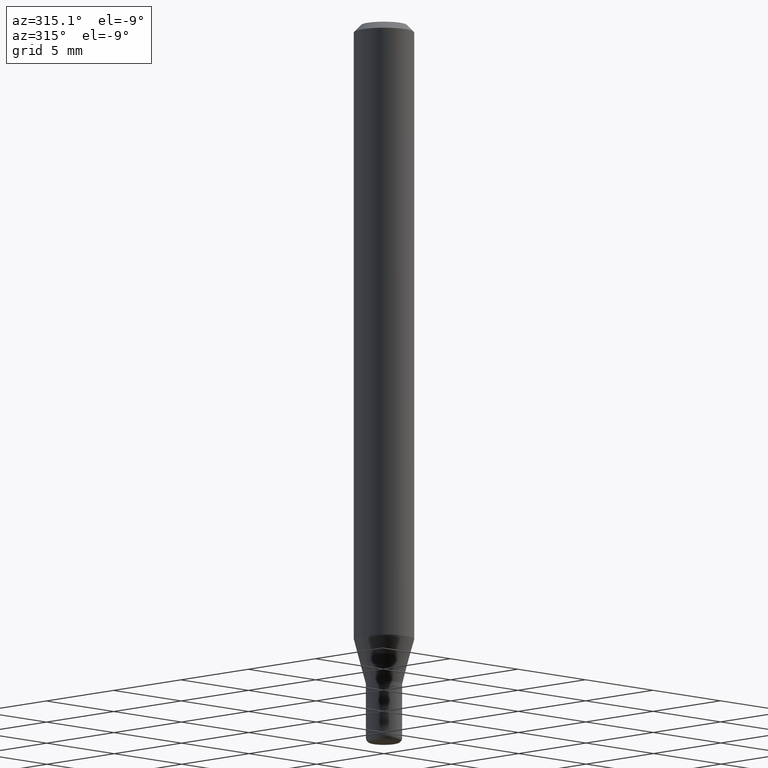
[diagram: clean part render]
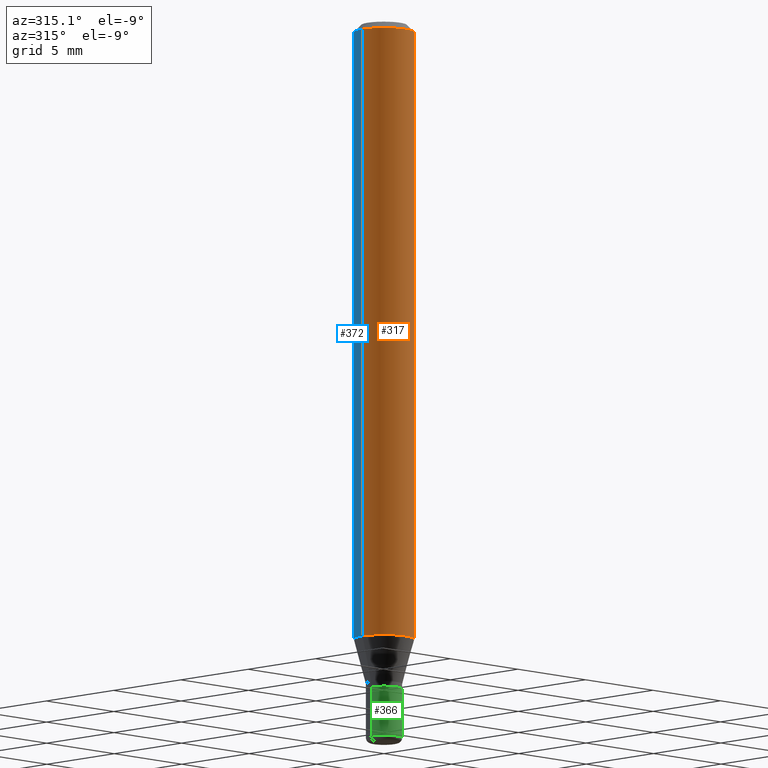
[diagram: same view with three faces highlighted in distinct colors, each labeled with its STEP entity id]
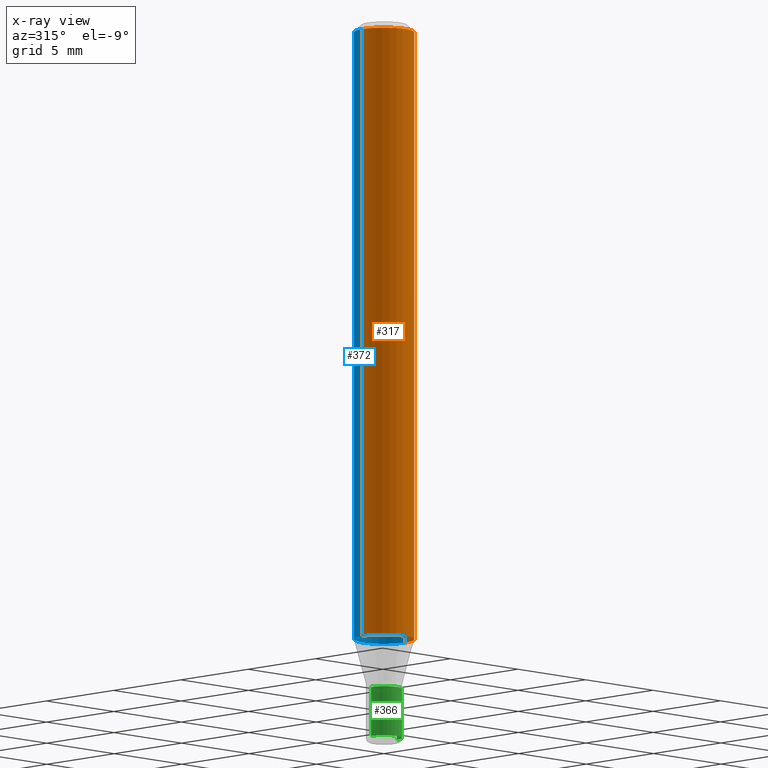
[diagram: x-ray of the same camera — body ghosted, the three highlighted faces saturated]
A machine part, auxiliary view with three faces highlighted in distinct colors.
The next image is the same camera in x-ray (body ghosted, the three faces saturated) — at least one of them is partly hidden behind the body in this view.
Their STEP definitions:

[orange] entity #317 — the highlighted cylindrical surface (edge-blend (fillet) strip) has radius 1.5875 mm, axis along (-0, 0, 1).
#32 = CARTESIAN_POINT ( 'NONE',  ( 0.000000000000000000, 0.000000000000000000, 0.000000000000000000 ) ) ;
#47 = EDGE_CURVE ( 'NONE', #388, #312, #76, .T. ) ;
#73 = VERTEX_POINT ( 'NONE', #167 ) ;
#76 = LINE ( 'NONE', #478, #501 ) ;
#94 = CARTESIAN_POINT ( 'NONE',  ( -0.06250000000000000000, -1.823101980106750651E-15, -0.01499999999999970281 ) ) ;
#99 = AXIS2_PLACEMENT_3D ( 'NONE', #263, #374, #137 ) ;
#109 = FACE_OUTER_BOUND ( 'NONE', #202, .T. ) ;
#120 = DIRECTION ( 'NONE',  ( -2.445468806185136877E-29, 3.491481338843145188E-15, 1.000000000000000000 ) ) ;
#132 = EDGE_CURVE ( 'NONE', #73, #388, #468, .T. ) ;
#134 = AXIS2_PLACEMENT_3D ( 'NONE', #348, #260, #266 ) ;
#137 = DIRECTION ( 'NONE',  ( 1.000000000000000000, -6.982962677686266711E-15, 0.000000000000000000 ) ) ;
#167 = CARTESIAN_POINT ( 'NONE',  ( -0.06250000000000000000, -4.037920949980918021E-15, -1.283698729810778039 ) ) ;
#174 = VERTEX_POINT ( 'NONE', #94 ) ;
#181 = EDGE_CURVE ( 'NONE', #73, #174, #413, .T. ) ;
#195 = CIRCLE ( 'NONE', #99, 0.06250000000000000000 ) ;
#202 = EDGE_LOOP ( 'NONE', ( #291, #353, #463, #487 ) ) ;
#207 = VECTOR ( 'NONE', #308, 39.37007874015748143 ) ;
#219 = CYLINDRICAL_SURFACE ( 'NONE', #327, 0.06250000000000000000 ) ;
#225 = EDGE_CURVE ( 'NONE', #174, #312, #195, .T. ) ;
#259 = CARTESIAN_POINT ( 'NONE',  ( 0.06250000000000000000, -4.918445327186372307E-15, -1.283698729810778039 ) ) ;
#260 = DIRECTION ( 'NONE',  ( -2.445468806185136597E-29, 3.491481338843145583E-15, 1.000000000000000000 ) ) ;
#263 = CARTESIAN_POINT ( 'NONE',  ( 3.668203209277632395E-31, -5.237222008264614861E-17, -0.01499999999999970281 ) ) ;
#266 = DIRECTION ( 'NONE',  ( 1.000000000000000000, -6.982962677686262766E-15, 0.000000000000000000 ) ) ;
#291 = ORIENTED_EDGE ( 'NONE', *, *, #181, .F. ) ;
#304 = DIRECTION ( 'NONE',  ( 1.000000000000000000, -6.982962677686266711E-15, 4.876176775795935793E-29 ) ) ;
#307 = CARTESIAN_POINT ( 'NONE',  ( 0.06250000000000000000, -4.888073874380378612E-16, -0.01499999999999970281 ) ) ;
#308 = DIRECTION ( 'NONE',  ( -2.445468806185136877E-29, 3.491481338843145188E-15, 1.000000000000000000 ) ) ;
#312 = VERTEX_POINT ( 'NONE', #307 ) ;
#317 = ADVANCED_FACE ( 'NONE', ( #109 ), #219, .T. ) ;
#327 = AXIS2_PLACEMENT_3D ( 'NONE', #32, #425, #304 ) ;
#344 = CARTESIAN_POINT ( 'NONE',  ( -0.06250000000000000000, 4.440892098500626162E-16, -3.074334431409316114E-30 ) ) ;
#348 = CARTESIAN_POINT ( 'NONE',  ( 3.139245200291739433E-29, -4.482010159830980638E-15, -1.283698729810778039 ) ) ;
#353 = ORIENTED_EDGE ( 'NONE', *, *, #132, .T. ) ;
#374 = DIRECTION ( 'NONE',  ( -2.445468806185136597E-29, 3.491481338843145583E-15, 1.000000000000000000 ) ) ;
#388 = VERTEX_POINT ( 'NONE', #259 ) ;
#413 = LINE ( 'NONE', #344, #207 ) ;
#425 = DIRECTION ( 'NONE',  ( -2.445468806185136597E-29, 3.491481338843145583E-15, 1.000000000000000000 ) ) ;
#463 = ORIENTED_EDGE ( 'NONE', *, *, #47, .T. ) ;
#468 = CIRCLE ( 'NONE', #134, 0.06250000000000000000 ) ;
#478 = CARTESIAN_POINT ( 'NONE',  ( 0.06250000000000000000, -4.364351673553916694E-16, 3.047610484872459871E-30 ) ) ;
#487 = ORIENTED_EDGE ( 'NONE', *, *, #225, .F. ) ;
#501 = VECTOR ( 'NONE', #120, 39.37007874015748143 ) ;

[blue] entity #372 — the highlighted cylindrical surface (edge-blend (fillet) strip) has radius 1.5875 mm, axis along (-0, 0, 1).
#17 = DIRECTION ( 'NONE',  ( 1.000000000000000000, -6.982962677686266711E-15, 0.000000000000000000 ) ) ;
#30 = DIRECTION ( 'NONE',  ( -2.445468806185136597E-29, 3.491481338843145583E-15, 1.000000000000000000 ) ) ;
#47 = EDGE_CURVE ( 'NONE', #388, #312, #76, .T. ) ;
#64 = ORIENTED_EDGE ( 'NONE', *, *, #83, .F. ) ;
#73 = VERTEX_POINT ( 'NONE', #167 ) ;
#76 = LINE ( 'NONE', #478, #501 ) ;
#83 = EDGE_CURVE ( 'NONE', #312, #174, #396, .T. ) ;
#90 = AXIS2_PLACEMENT_3D ( 'NONE', #505, #377, #179 ) ;
#94 = CARTESIAN_POINT ( 'NONE',  ( -0.06250000000000000000, -1.823101980106750651E-15, -0.01499999999999970281 ) ) ;
#120 = DIRECTION ( 'NONE',  ( -2.445468806185136877E-29, 3.491481338843145188E-15, 1.000000000000000000 ) ) ;
#141 = AXIS2_PLACEMENT_3D ( 'NONE', #345, #30, #343 ) ;
#161 = AXIS2_PLACEMENT_3D ( 'NONE', #456, #254, #17 ) ;
#167 = CARTESIAN_POINT ( 'NONE',  ( -0.06250000000000000000, -4.037920949980918021E-15, -1.283698729810778039 ) ) ;
#174 = VERTEX_POINT ( 'NONE', #94 ) ;
#179 = DIRECTION ( 'NONE',  ( 1.000000000000000000, -6.982962677686266711E-15, 4.876176775795935793E-29 ) ) ;
#181 = EDGE_CURVE ( 'NONE', #73, #174, #413, .T. ) ;
#207 = VECTOR ( 'NONE', #308, 39.37007874015748143 ) ;
#220 = EDGE_LOOP ( 'NONE', ( #240, #418, #64, #406 ) ) ;
#227 = CYLINDRICAL_SURFACE ( 'NONE', #90, 0.06250000000000000000 ) ;
#240 = ORIENTED_EDGE ( 'NONE', *, *, #325, .T. ) ;
#254 = DIRECTION ( 'NONE',  ( -2.445468806185136597E-29, 3.491481338843145583E-15, 1.000000000000000000 ) ) ;
#259 = CARTESIAN_POINT ( 'NONE',  ( 0.06250000000000000000, -4.918445327186372307E-15, -1.283698729810778039 ) ) ;
#307 = CARTESIAN_POINT ( 'NONE',  ( 0.06250000000000000000, -4.888073874380378612E-16, -0.01499999999999970281 ) ) ;
#308 = DIRECTION ( 'NONE',  ( -2.445468806185136877E-29, 3.491481338843145188E-15, 1.000000000000000000 ) ) ;
#312 = VERTEX_POINT ( 'NONE', #307 ) ;
#325 = EDGE_CURVE ( 'NONE', #388, #73, #417, .T. ) ;
#343 = DIRECTION ( 'NONE',  ( 1.000000000000000000, -6.982962677686262766E-15, 0.000000000000000000 ) ) ;
#344 = CARTESIAN_POINT ( 'NONE',  ( -0.06250000000000000000, 4.440892098500626162E-16, -3.074334431409316114E-30 ) ) ;
#345 = CARTESIAN_POINT ( 'NONE',  ( 3.139245200291739433E-29, -4.482010159830980638E-15, -1.283698729810778039 ) ) ;
#349 = FACE_OUTER_BOUND ( 'NONE', #220, .T. ) ;
#372 = ADVANCED_FACE ( 'NONE', ( #349 ), #227, .T. ) ;
#377 = DIRECTION ( 'NONE',  ( -2.445468806185136597E-29, 3.491481338843145583E-15, 1.000000000000000000 ) ) ;
#388 = VERTEX_POINT ( 'NONE', #259 ) ;
#396 = CIRCLE ( 'NONE', #161, 0.06250000000000000000 ) ;
#406 = ORIENTED_EDGE ( 'NONE', *, *, #47, .F. ) ;
#413 = LINE ( 'NONE', #344, #207 ) ;
#417 = CIRCLE ( 'NONE', #141, 0.06250000000000000000 ) ;
#418 = ORIENTED_EDGE ( 'NONE', *, *, #181, .T. ) ;
#456 = CARTESIAN_POINT ( 'NONE',  ( 3.668203209277632395E-31, -5.237222008264614861E-17, -0.01499999999999970281 ) ) ;
#478 = CARTESIAN_POINT ( 'NONE',  ( 0.06250000000000000000, -4.364351673553916694E-16, 3.047610484872459871E-30 ) ) ;
#501 = VECTOR ( 'NONE', #120, 39.37007874015748143 ) ;
#505 = CARTESIAN_POINT ( 'NONE',  ( 0.000000000000000000, 0.000000000000000000, 0.000000000000000000 ) ) ;

[green] entity #366 — the highlighted cylindrical surface (edge-blend (fillet) strip) has radius 0.9525 mm, axis along (-0, 0, 1).
#6 = CARTESIAN_POINT ( 'NONE',  ( 3.393087968581877252E-29, -4.844430357644865674E-15, -1.387500000000000178 ) ) ;
#48 = LINE ( 'NONE', #494, #379 ) ;
#52 = VERTEX_POINT ( 'NONE', #88 ) ;
#63 = DIRECTION ( 'NONE',  ( -2.445468806185136877E-29, 3.491481338843145188E-15, 1.000000000000000000 ) ) ;
#65 = CYLINDRICAL_SURFACE ( 'NONE', #154, 0.03749999999999997086 ) ;
#66 = CARTESIAN_POINT ( 'NONE',  ( 0.03749999999999997086, -2.618611004132348044E-16, 1.828566290923474521E-30 ) ) ;
#69 = CARTESIAN_POINT ( 'NONE',  ( 3.643748521215853910E-29, -5.202307194876288105E-15, -1.490000000000000213 ) ) ;
#82 = EDGE_CURVE ( 'NONE', #106, #192, #48, .T. ) ;
#88 = CARTESIAN_POINT ( 'NONE',  ( 0.03749999999999999861, -5.106291458058100676E-15, -1.387500000000000178 ) ) ;
#101 = CARTESIAN_POINT ( 'NONE',  ( 0.03749999999999994310, -5.464168295289523107E-15, -1.490000000000000213 ) ) ;
#104 = FACE_OUTER_BOUND ( 'NONE', #381, .T. ) ;
#106 = VERTEX_POINT ( 'NONE', #412 ) ;
#112 = CARTESIAN_POINT ( 'NONE',  ( -0.03749999999999999861, -4.756915250350539872E-15, -1.387500000000000178 ) ) ;
#115 = AXIS2_PLACEMENT_3D ( 'NONE', #69, #393, #352 ) ;
#128 = DIRECTION ( 'NONE',  ( -2.445468806185136877E-29, 3.491481338843145188E-15, 1.000000000000000000 ) ) ;
#154 = AXIS2_PLACEMENT_3D ( 'NONE', #421, #342, #509 ) ;
#156 = DIRECTION ( 'NONE',  ( 1.000000000000000000, -6.982962677686268288E-15, 0.000000000000000000 ) ) ;
#176 = LINE ( 'NONE', #66, #316 ) ;
#192 = VERTEX_POINT ( 'NONE', #112 ) ;
#200 = CIRCLE ( 'NONE', #115, 0.03749999999999994310 ) ;
#247 = EDGE_CURVE ( 'NONE', #394, #52, #176, .T. ) ;
#316 = VECTOR ( 'NONE', #63, 39.37007874015748143 ) ;
#331 = ORIENTED_EDGE ( 'NONE', *, *, #416, .F. ) ;
#342 = DIRECTION ( 'NONE',  ( -2.445468806185136597E-29, 3.491481338843145583E-15, 1.000000000000000000 ) ) ;
#352 = DIRECTION ( 'NONE',  ( 1.000000000000000000, -6.982962677686278543E-15, 0.000000000000000000 ) ) ;
#366 = ADVANCED_FACE ( 'NONE', ( #104 ), #65, .T. ) ;
#379 = VECTOR ( 'NONE', #128, 39.37007874015748143 ) ;
#381 = EDGE_LOOP ( 'NONE', ( #433, #483, #472, #331 ) ) ;
#393 = DIRECTION ( 'NONE',  ( -2.445468806185136597E-29, 3.491481338843145583E-15, 1.000000000000000000 ) ) ;
#394 = VERTEX_POINT ( 'NONE', #101 ) ;
#412 = CARTESIAN_POINT ( 'NONE',  ( -0.03749999999999994310, -4.756915250350539872E-15, -1.490000000000000213 ) ) ;
#416 = EDGE_CURVE ( 'NONE', #192, #52, #426, .T. ) ;
#421 = CARTESIAN_POINT ( 'NONE',  ( 0.000000000000000000, 0.000000000000000000, 0.000000000000000000 ) ) ;
#426 = CIRCLE ( 'NONE', #435, 0.03749999999999999861 ) ;
#433 = ORIENTED_EDGE ( 'NONE', *, *, #82, .F. ) ;
#434 = DIRECTION ( 'NONE',  ( -2.445468806185136597E-29, 3.491481338843145583E-15, 1.000000000000000000 ) ) ;
#435 = AXIS2_PLACEMENT_3D ( 'NONE', #6, #434, #156 ) ;
#472 = ORIENTED_EDGE ( 'NONE', *, *, #247, .T. ) ;
#483 = ORIENTED_EDGE ( 'NONE', *, *, #507, .T. ) ;
#494 = CARTESIAN_POINT ( 'NONE',  ( -0.03749999999999997086, 2.664535259100373626E-16, -1.844600658845588407E-30 ) ) ;
#507 = EDGE_CURVE ( 'NONE', #106, #394, #200, .T. ) ;
#509 = DIRECTION ( 'NONE',  ( 1.000000000000000000, -6.982962677686266711E-15, 4.876176775795935793E-29 ) ) ;